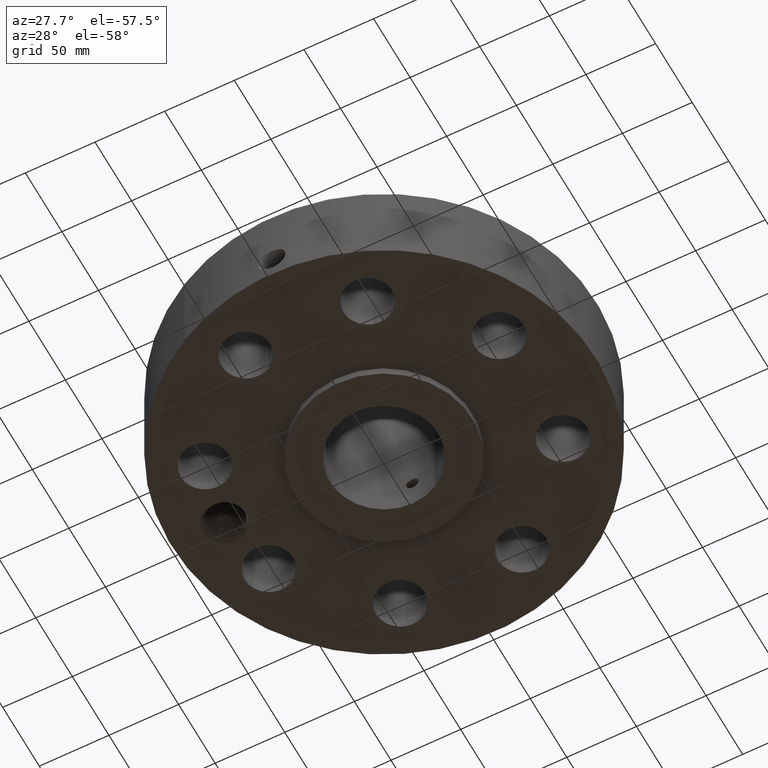
[diagram: clean part render]
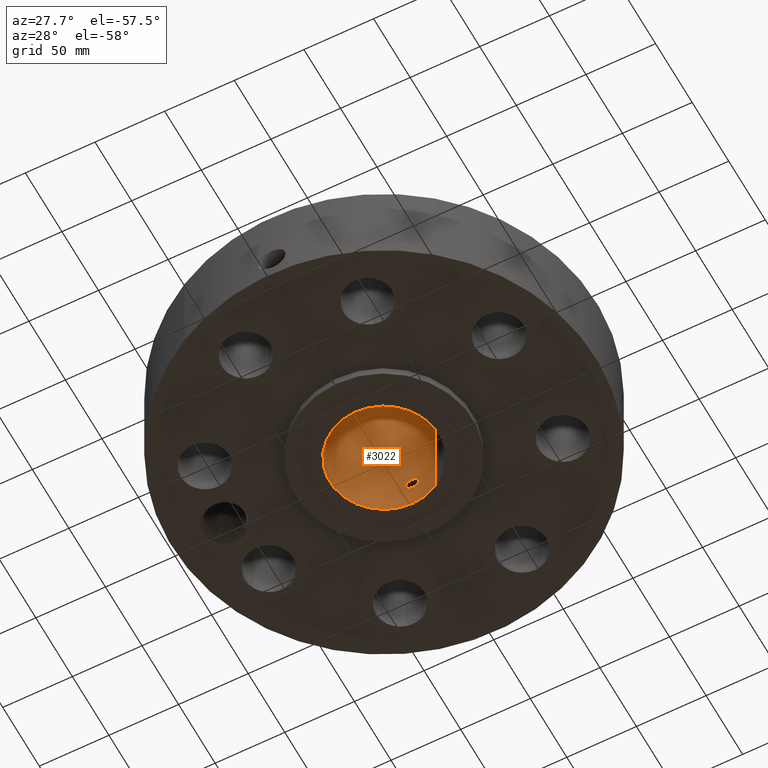
[diagram: same view with one face highlighted and labeled with its STEP entity id]
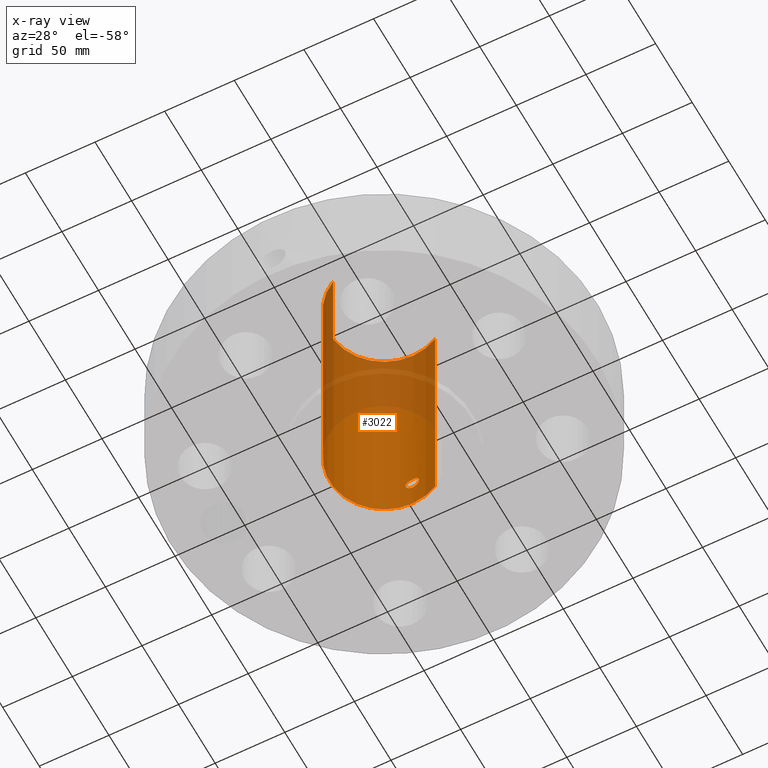
[diagram: x-ray of the same camera — body ghosted, the highlighted face saturated]
A machine part, auxiliary view. The second image highlights one B-rep face of the part: STEP entity #3022.
The next image is the same camera in x-ray: the body ghosted, the highlighted face saturated — about 42% of this face is hidden behind the body in this view.
In plain terms, the highlighted cylindrical surface (partial cylindrical patch) has radius 38.9636 mm, axis along (0, 0, -1).
Its self-contained STEP definition (entity closure, byte-faithful):
#2190=AXIS2_PLACEMENT_3D('Circle Axis2P3D',#2188,#2189,$) ;
#2899=AXIS2_PLACEMENT_3D('Cylinder Axis2P3D',#2896,#2897,#2898) ;
#2971=AXIS2_PLACEMENT_3D('Circle Axis2P3D',#2969,#2970,$) ;
#2183=CARTESIAN_POINT('Vertex',(0.735438776222,1.34621164995,-5.59482469102E-015)) ;
#2185=CARTESIAN_POINT('Vertex',(-0.735438776222,-1.34621164995,-5.59482469102E-015)) ;
#2188=CARTESIAN_POINT('Axis2P3D Location',(0.,0.,0.)) ;
#2896=CARTESIAN_POINT('Axis2P3D Location',(0.,0.,3.43500000001)) ;
#2905=CARTESIAN_POINT('Vertex',(0.735438776222,1.34621164995,6.87000000003)) ;
#2907=CARTESIAN_POINT('Vertex',(-0.735438776222,-1.34621164995,6.87000000003)) ;
#2910=CARTESIAN_POINT('Line Origine',(0.735438776222,1.34621164995,3.43500000001)) ;
#2915=CARTESIAN_POINT('Line Origine',(-0.735438776222,-1.34621164995,3.43500000001)) ;
#2969=CARTESIAN_POINT('Axis2P3D Location',(0.,0.,6.87000000003)) ;
#2981=CARTESIAN_POINT('Control Point',(0.164546730355,1.52514929549,1.02989228849)) ;
#2982=CARTESIAN_POINT('Control Point',(0.153730987739,1.52631619443,1.04969037255)) ;
#2983=CARTESIAN_POINT('Control Point',(0.139943198892,1.52770675216,1.06785160914)) ;
#2984=CARTESIAN_POINT('Control Point',(0.123507748965,1.52917958204,1.08379188797)) ;
#2985=CARTESIAN_POINT('Control Point',(0.0771300553287,1.53257507292,1.11681265248)) ;
#2986=CARTESIAN_POINT('Control Point',(0.021117456954,1.53443807468,1.13100247168)) ;
#2987=CARTESIAN_POINT('Control Point',(-0.0139156713083,1.53452842349,1.13166348665)) ;
#2988=CARTESIAN_POINT('Control Point',(-0.0704492146791,1.53291709887,1.11958376251)) ;
#2989=CARTESIAN_POINT('Control Point',(-0.118051609553,1.52962023944,1.08830865568)) ;
#2990=CARTESIAN_POINT('Control Point',(-0.135083668785,1.52815406454,1.07297980438)) ;
#2991=CARTESIAN_POINT('Control Point',(-0.174443725812,1.52429835588,1.0249543532)) ;
#2992=CARTESIAN_POINT('Control Point',(-0.192228358513,1.52190251018,0.963988821438)) ;
#2993=CARTESIAN_POINT('Control Point',(-0.192989830599,1.52179279367,0.923172568878)) ;
#2994=CARTESIAN_POINT('Control Point',(-0.183177815637,1.52313920758,0.884211684367)) ;
#2995=CARTESIAN_POINT('Control Point',(-0.164546730355,1.52514929549,0.850107711515)) ;
#2996=CARTESIAN_POINT('Vertex',(0.164546730355,1.52514929549,1.02989228849)) ;
#2998=CARTESIAN_POINT('Vertex',(-0.164546730355,1.52514929549,0.850107711515)) ;
#3002=CARTESIAN_POINT('Control Point',(-0.164546730355,1.52514929549,0.850107711515)) ;
#3003=CARTESIAN_POINT('Control Point',(-0.153730987743,1.52631619443,0.830309627462)) ;
#3004=CARTESIAN_POINT('Control Point',(-0.139943198901,1.52770675216,0.812148390877)) ;
#3005=CARTESIAN_POINT('Control Point',(-0.123507748958,1.52917958204,0.796208112034)) ;
#3006=CARTESIAN_POINT('Control Point',(-0.0771300553269,1.53257507292,0.763187347528)) ;
#3007=CARTESIAN_POINT('Control Point',(-0.0211174569595,1.53443807468,0.748997528331)) ;
#3008=CARTESIAN_POINT('Control Point',(0.0139156713005,1.53452842349,0.748336513359)) ;
#3009=CARTESIAN_POINT('Control Point',(0.0704492146684,1.53291709887,0.76041623749)) ;
#3010=CARTESIAN_POINT('Control Point',(0.118051609541,1.52962023944,0.79169134432)) ;
#3011=CARTESIAN_POINT('Control Point',(0.135083668785,1.52815406454,0.807020195625)) ;
#3012=CARTESIAN_POINT('Control Point',(0.174443725809,1.52429835588,0.855045646809)) ;
#3013=CARTESIAN_POINT('Control Point',(0.192228358511,1.52190251018,0.916011178559)) ;
#3014=CARTESIAN_POINT('Control Point',(0.192989830598,1.52179279367,0.956827431133)) ;
#3015=CARTESIAN_POINT('Control Point',(0.183177815637,1.52313920758,0.995788315642)) ;
#3016=CARTESIAN_POINT('Control Point',(0.164546730355,1.52514929549,1.02989228849)) ;
#2189=DIRECTION('Axis2P3D Direction',(0.,0.,-0.0393700787402)) ;
#2897=DIRECTION('Axis2P3D Direction',(0.,0.,-0.0393700787402)) ;
#2898=DIRECTION('Axis2P3D XDirection',(-0.0188750212049,-0.0345504945626,0.)) ;
#2911=DIRECTION('Vector Direction',(0.,0.,-0.0393700787402)) ;
#2916=DIRECTION('Vector Direction',(0.,0.,-0.0393700787402)) ;
#2970=DIRECTION('Axis2P3D Direction',(0.,0.,-0.0393700787402)) ;
#2912=VECTOR('Line Direction',#2911,0.0393700787402) ;
#2917=VECTOR('Line Direction',#2916,0.0393700787402) ;
#2975=ORIENTED_EDGE('',*,*,#2973,.F.) ;
#2976=ORIENTED_EDGE('',*,*,#2919,.T.) ;
#2977=ORIENTED_EDGE('',*,*,#2192,.T.) ;
#2978=ORIENTED_EDGE('',*,*,#2914,.F.) ;
#3019=ORIENTED_EDGE('',*,*,#3000,.F.) ;
#3020=ORIENTED_EDGE('',*,*,#3017,.F.) ;
#3021=FACE_BOUND('',#3018,.T.) ;
#3022=ADVANCED_FACE('PartBody',(#2979,#3021),#2900,.F.) ;
#2980=B_SPLINE_CURVE_WITH_KNOTS('',5,(#2981,#2982,#2983,#2984,#2985,#2986,#2987,#2988,#2989,#2990,#2991,#2992,#2993,#2994,#2995),.UNSPECIFIED.,.F.,.U.,(6,3,3,3,6),(0.,4.05727166103,10.1291862384,14.1895477956,21.1785615891),.UNSPECIFIED.) ;
#3001=B_SPLINE_CURVE_WITH_KNOTS('',5,(#3002,#3003,#3004,#3005,#3006,#3007,#3008,#3009,#3010,#3011,#3012,#3013,#3014,#3015,#3016),.UNSPECIFIED.,.F.,.U.,(6,3,3,3,6),(0.,4.05727165969,10.1291862372,14.1895477936,21.1785615868),.UNSPECIFIED.) ;
#2191=CIRCLE('generated circle',#2190,1.53400000001) ;
#2972=CIRCLE('generated circle',#2971,1.53400000001) ;
#2900=CYLINDRICAL_SURFACE('generated cylinder',#2899,1.53400000001) ;
#2192=EDGE_CURVE('',#2186,#2184,#2191,.T.) ;
#2914=EDGE_CURVE('',#2906,#2184,#2913,.T.) ;
#2919=EDGE_CURVE('',#2908,#2186,#2918,.T.) ;
#2973=EDGE_CURVE('',#2908,#2906,#2972,.T.) ;
#3000=EDGE_CURVE('',#2997,#2999,#2980,.T.) ;
#3017=EDGE_CURVE('',#2999,#2997,#3001,.T.) ;
#2974=EDGE_LOOP('',(#2975,#2976,#2977,#2978)) ;
#3018=EDGE_LOOP('',(#3019,#3020)) ;
#2979=FACE_OUTER_BOUND('',#2974,.T.) ;
#2913=LINE('Line',#2910,#2912) ;
#2918=LINE('Line',#2915,#2917) ;
#2184=VERTEX_POINT('',#2183) ;
#2186=VERTEX_POINT('',#2185) ;
#2906=VERTEX_POINT('',#2905) ;
#2908=VERTEX_POINT('',#2907) ;
#2997=VERTEX_POINT('',#2996) ;
#2999=VERTEX_POINT('',#2998) ;